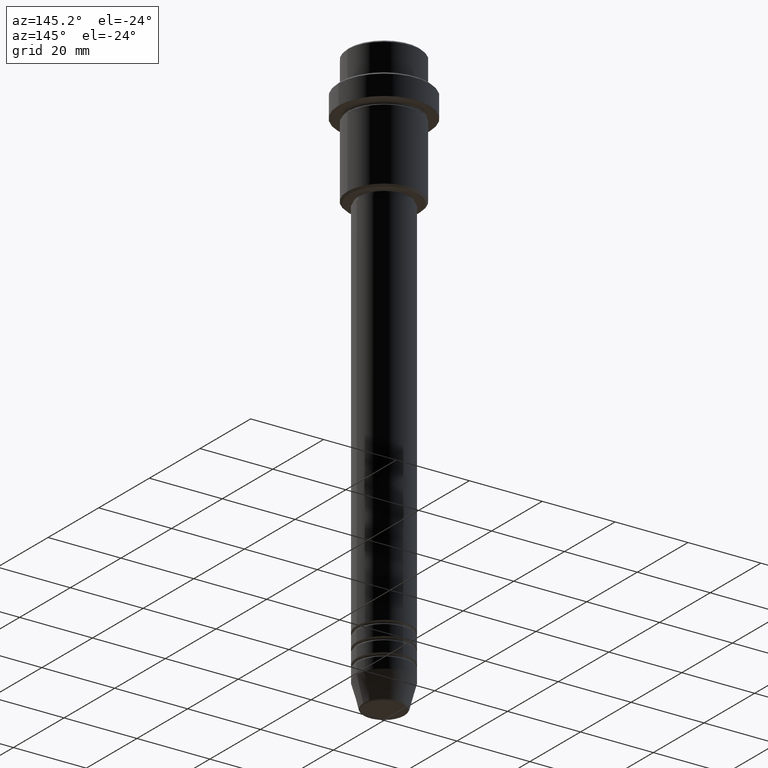
[diagram: clean part render]
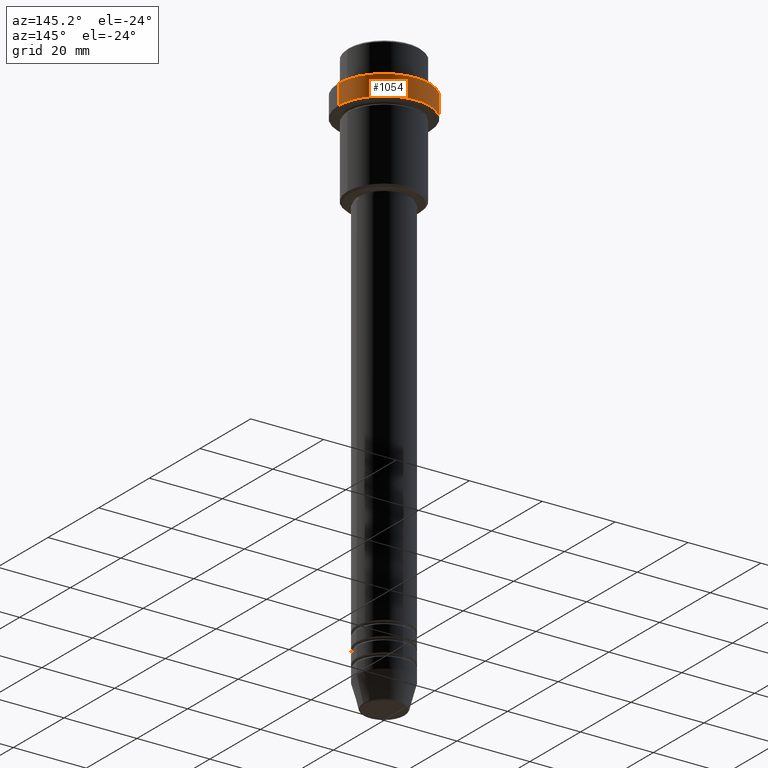
[diagram: same view with one face highlighted and labeled with its STEP entity id]
A machine part, auxiliary view. The second image highlights one B-rep face of the part: STEP entity #1054.
In plain terms, the highlighted cylindrical surface (partial cylindrical patch) has radius 12.5 mm, axis along (-0, -0, 1).
Its self-contained STEP definition (entity closure, byte-faithful):
#8 = ORIENTED_EDGE ( 'NONE', *, *, #1232, .T. ) ;
#17 = ORIENTED_EDGE ( 'NONE', *, *, #1371, .T. ) ;
#21 = CIRCLE ( 'NONE', #316, 12.50000000000000000 ) ;
#27 = CARTESIAN_POINT ( 'NONE',  ( 12.50000000000000000, 0.000000000000000000, -15.00000000000000000 ) ) ;
#46 = DIRECTION ( 'NONE',  ( -0.000000000000000000, -0.000000000000000000, 1.000000000000000000 ) ) ;
#64 = LINE ( 'NONE', #205, #754 ) ;
#97 = DIRECTION ( 'NONE',  ( -0.000000000000000000, -0.000000000000000000, 1.000000000000000000 ) ) ;
#152 = VECTOR ( 'NONE', #450, 1000.000000000000000 ) ;
#205 = CARTESIAN_POINT ( 'NONE',  ( 12.50000000000000000, 0.000000000000000000, 0.000000000000000000 ) ) ;
#220 = VERTEX_POINT ( 'NONE', #245 ) ;
#245 = CARTESIAN_POINT ( 'NONE',  ( -12.50000000000000000, 1.530808498934191521E-15, -9.499999999999991118 ) ) ;
#267 = VERTEX_POINT ( 'NONE', #1163 ) ;
#316 = AXIS2_PLACEMENT_3D ( 'NONE', #553, #538, #1295 ) ;
#445 = ORIENTED_EDGE ( 'NONE', *, *, #728, .F. ) ;
#450 = DIRECTION ( 'NONE',  ( -0.000000000000000000, -0.000000000000000000, 1.000000000000000000 ) ) ;
#467 = CARTESIAN_POINT ( 'NONE',  ( -12.50000000000000000, 1.530808498934191521E-15, 0.000000000000000000 ) ) ;
#469 = EDGE_CURVE ( 'NONE', #788, #220, #1084, .T. ) ;
#491 = FACE_OUTER_BOUND ( 'NONE', #954, .T. ) ;
#502 = CIRCLE ( 'NONE', #1267, 12.50000000000000000 ) ;
#538 = DIRECTION ( 'NONE',  ( 0.000000000000000000, 0.000000000000000000, -1.000000000000000000 ) ) ;
#553 = CARTESIAN_POINT ( 'NONE',  ( 0.000000000000000000, 0.000000000000000000, -9.499999999999991118 ) ) ;
#600 = DIRECTION ( 'NONE',  ( 1.000000000000000000, 0.000000000000000000, 0.000000000000000000 ) ) ;
#728 = EDGE_CURVE ( 'NONE', #1103, #267, #64, .T. ) ;
#741 = ORIENTED_EDGE ( 'NONE', *, *, #469, .T. ) ;
#754 = VECTOR ( 'NONE', #97, 1000.000000000000000 ) ;
#788 = VERTEX_POINT ( 'NONE', #961 ) ;
#826 = DIRECTION ( 'NONE',  ( -0.000000000000000000, -0.000000000000000000, 1.000000000000000000 ) ) ;
#925 = CYLINDRICAL_SURFACE ( 'NONE', #958, 12.50000000000000000 ) ;
#954 = EDGE_LOOP ( 'NONE', ( #8, #741, #17, #445 ) ) ;
#958 = AXIS2_PLACEMENT_3D ( 'NONE', #1346, #46, #600 ) ;
#961 = CARTESIAN_POINT ( 'NONE',  ( -12.50000000000000000, 1.530808498934191521E-15, -15.00000000000000000 ) ) ;
#1054 = ADVANCED_FACE ( 'NONE', ( #491 ), #925, .T. ) ;
#1084 = LINE ( 'NONE', #467, #152 ) ;
#1103 = VERTEX_POINT ( 'NONE', #27 ) ;
#1163 = CARTESIAN_POINT ( 'NONE',  ( 12.50000000000000000, 0.000000000000000000, -9.499999999999991118 ) ) ;
#1232 = EDGE_CURVE ( 'NONE', #1103, #788, #502, .T. ) ;
#1267 = AXIS2_PLACEMENT_3D ( 'NONE', #1397, #826, #1364 ) ;
#1295 = DIRECTION ( 'NONE',  ( 1.000000000000000000, 0.000000000000000000, 0.000000000000000000 ) ) ;
#1346 = CARTESIAN_POINT ( 'NONE',  ( 0.000000000000000000, 0.000000000000000000, 0.000000000000000000 ) ) ;
#1364 = DIRECTION ( 'NONE',  ( 1.000000000000000000, 0.000000000000000000, 0.000000000000000000 ) ) ;
#1371 = EDGE_CURVE ( 'NONE', #220, #267, #21, .T. ) ;
#1397 = CARTESIAN_POINT ( 'NONE',  ( 0.000000000000000000, 0.000000000000000000, -15.00000000000000000 ) ) ;